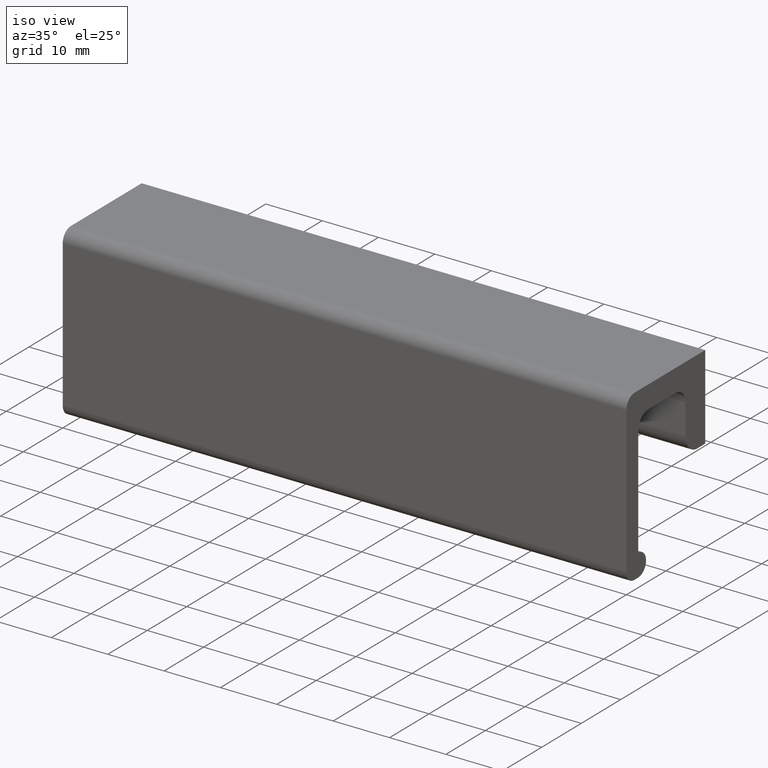
[diagram: clean part render]
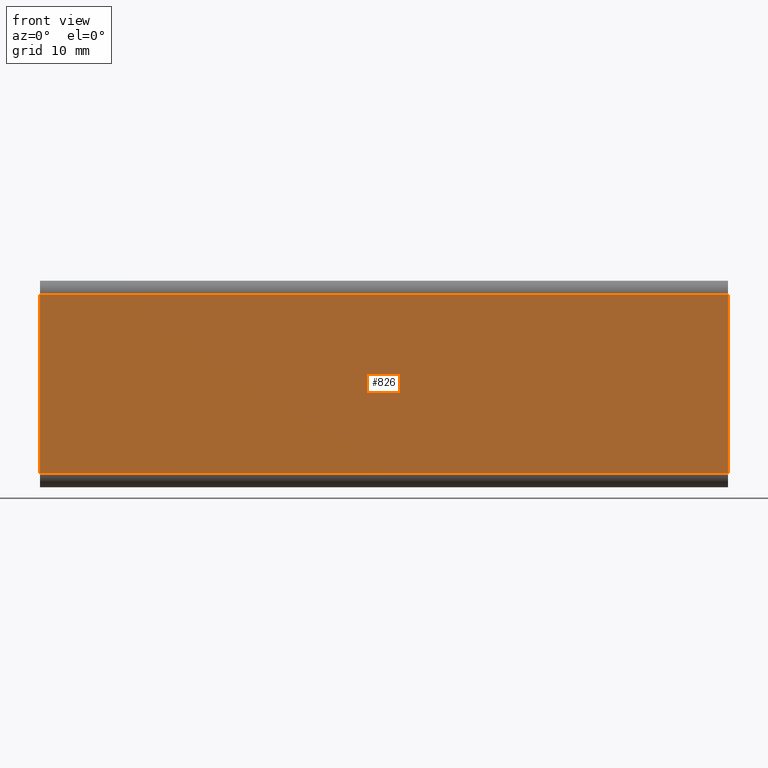
[diagram: tour spotlight — one face highlighted and labeled with its STEP entity id]
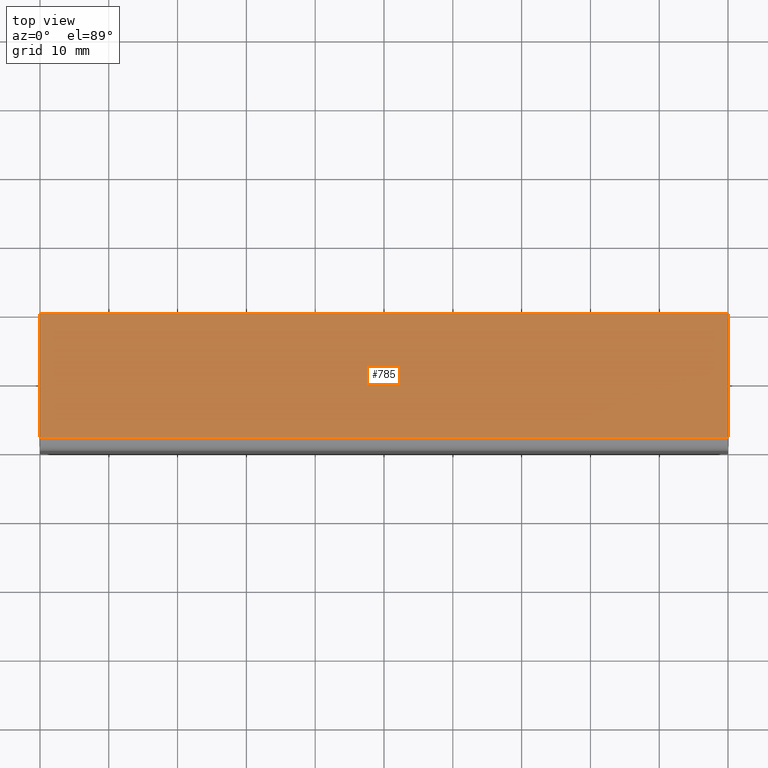
[diagram: tour spotlight — one face highlighted and labeled with its STEP entity id]
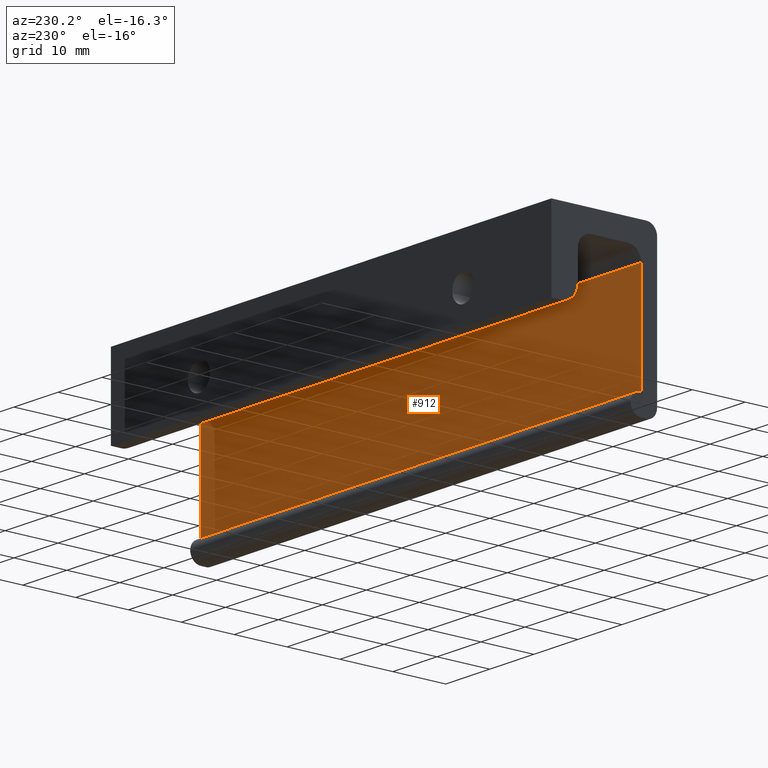
[diagram: tour spotlight — one face highlighted and labeled with its STEP entity id]
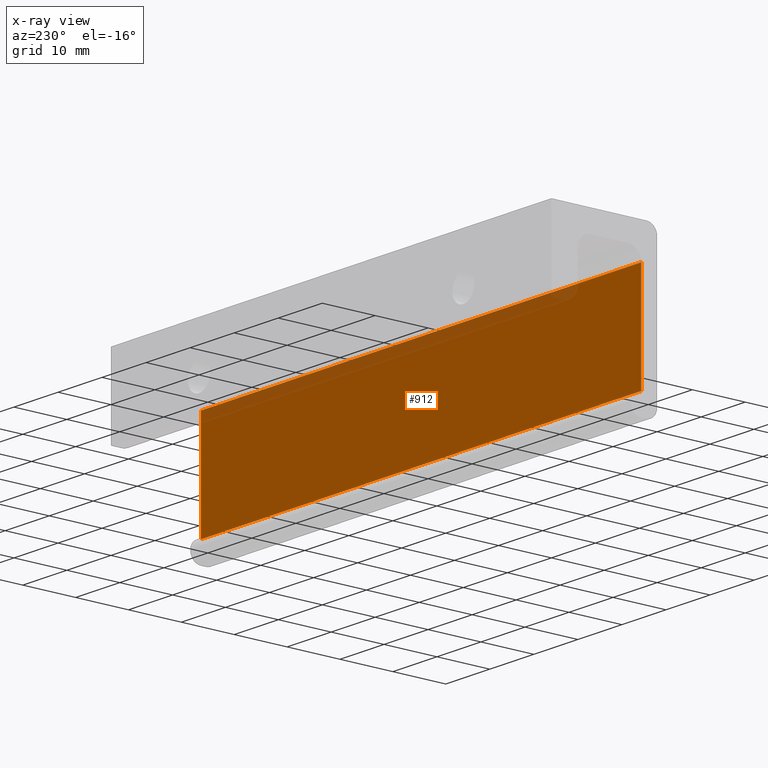
[diagram: x-ray of the same camera — body ghosted, this tour face saturated]
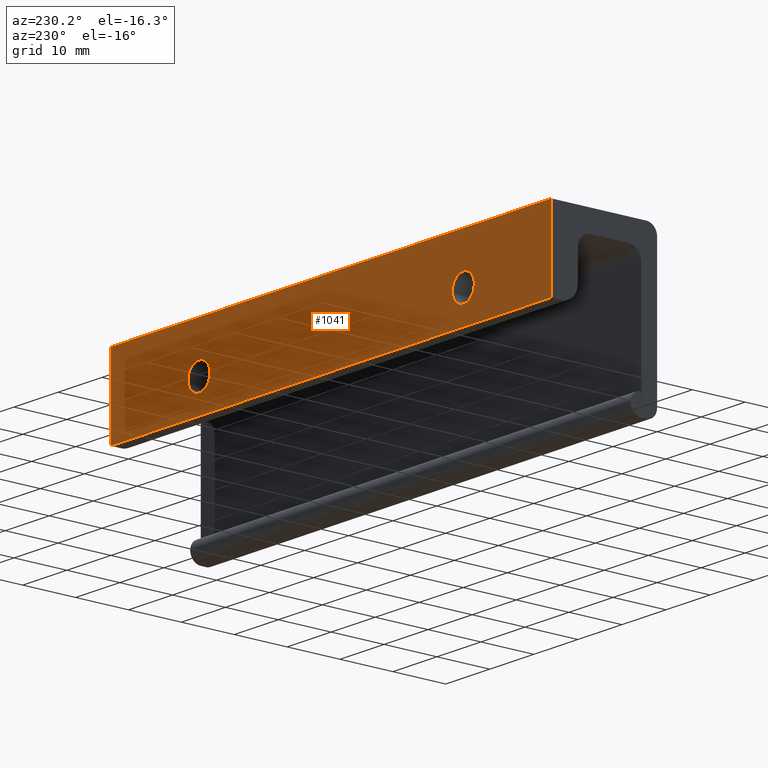
[diagram: tour spotlight — one face highlighted and labeled with its STEP entity id]
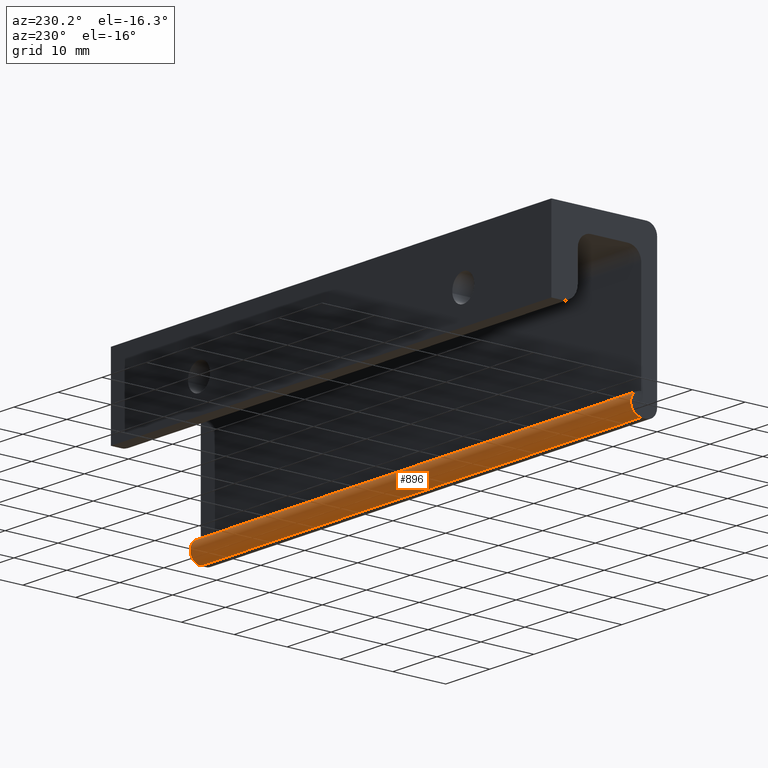
[diagram: tour spotlight — one face highlighted and labeled with its STEP entity id]
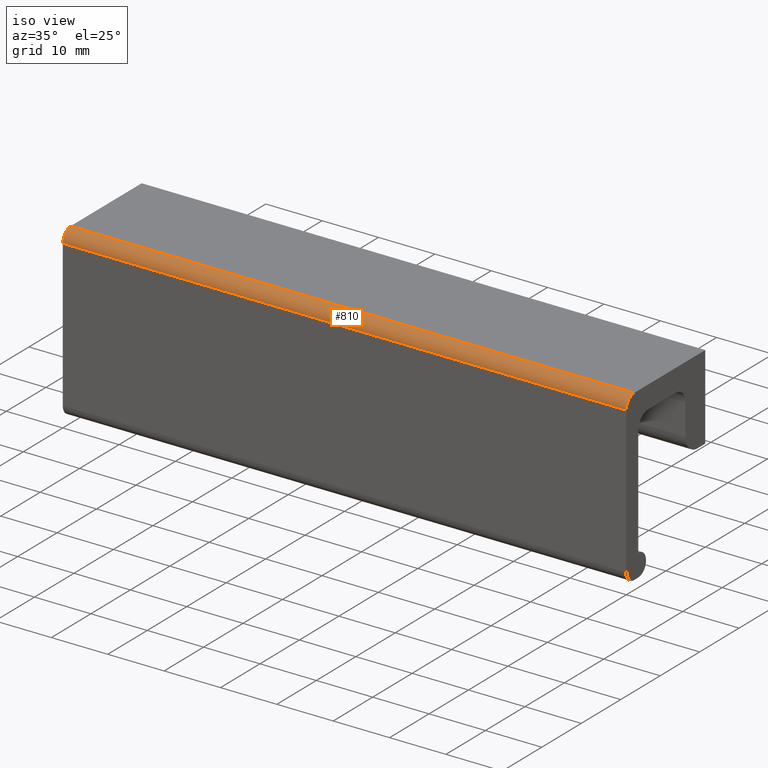
[diagram: tour spotlight — one face highlighted and labeled with its STEP entity id]
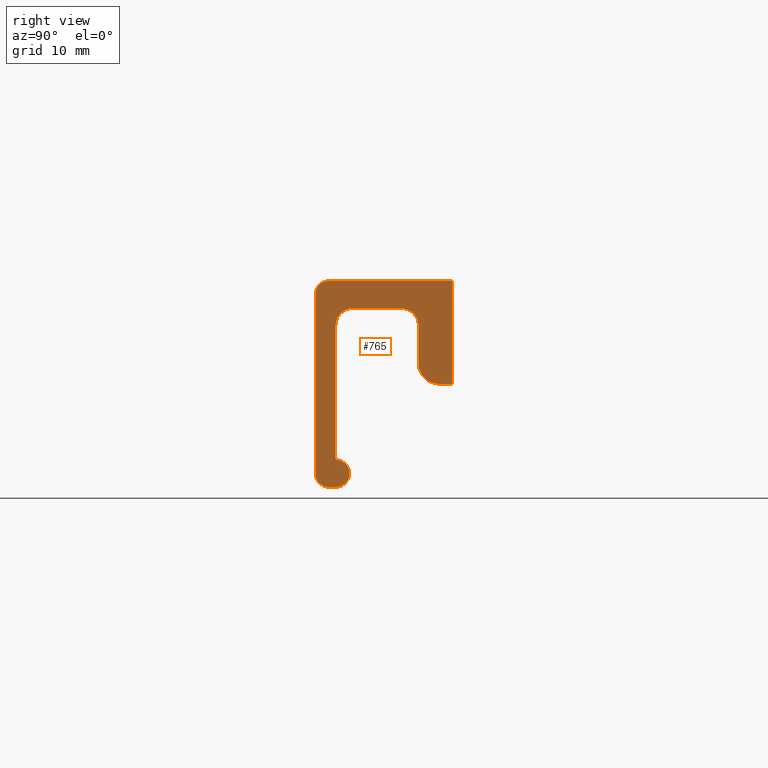
[diagram: tour spotlight — one face highlighted and labeled with its STEP entity id]
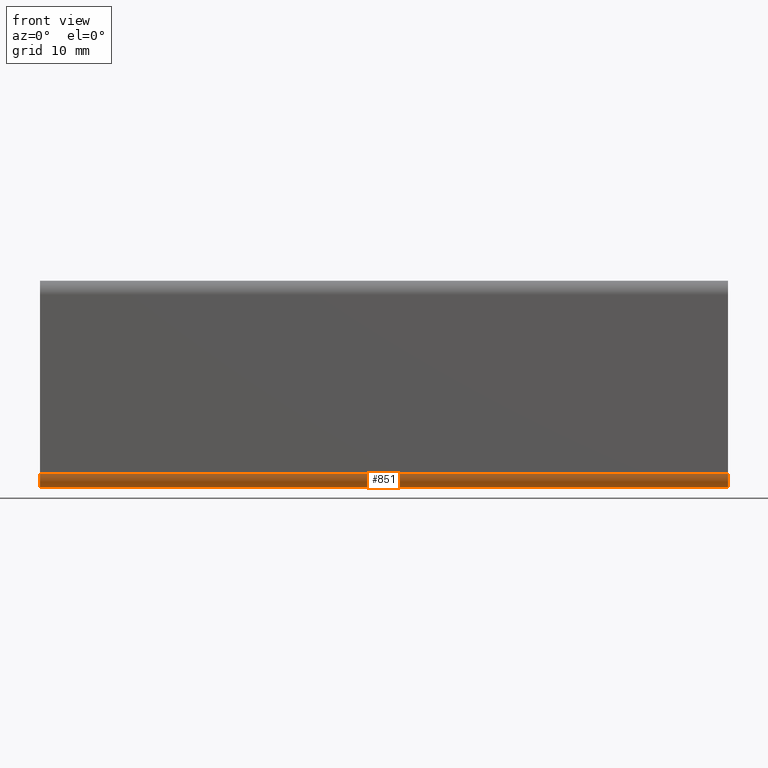
[diagram: tour spotlight — one face highlighted and labeled with its STEP entity id]
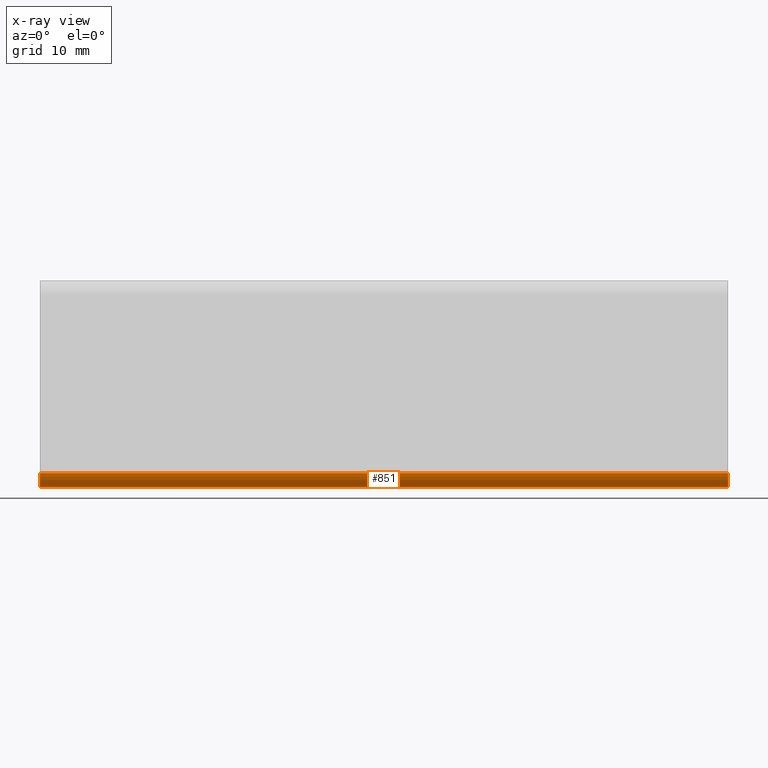
[diagram: x-ray of the same camera — body ghosted, this tour face saturated]
A machine part: a face-by-face anatomy tour. The part has 20 B-rep faces; the first image is the clean iso view, then the 8 largest visible faces are spotlighted one at a time (largest first), each with its STEP entity span.

Face 1 — front view, entity #826. In plain terms, the highlighted face is a freeform B-spline surface patch.
Definition (entity closure, byte-faithful):
#573=CARTESIAN_POINT('',(0.0,-20.0,-28.0));
#574=VERTEX_POINT('',#573);
#588=CARTESIAN_POINT('',(0.0,-20.0,-2.0));
#589=VERTEX_POINT('',#588);
#590=CARTESIAN_POINT('',(0.0,-20.0,-28.0));
#591=CARTESIAN_POINT('',(0.0,-20.0,-2.0));
#592=QUASI_UNIFORM_CURVE('',1,(#590,#591),.UNSPECIFIED.,.F.,.U.);
#593=EDGE_CURVE('',#574,#589,#592,.T.);
#639=CARTESIAN_POINT('',(100.0,-20.0,-2.0));
#640=VERTEX_POINT('',#639);
#654=CARTESIAN_POINT('',(100.0,-20.0,-28.0));
#655=VERTEX_POINT('',#654);
#656=CARTESIAN_POINT('',(100.0,-20.0,-28.0));
#657=CARTESIAN_POINT('',(100.0,-20.0,-2.0));
#658=QUASI_UNIFORM_CURVE('',1,(#656,#657),.UNSPECIFIED.,.F.,.U.);
#659=EDGE_CURVE('',#655,#640,#658,.T.);
#801=CARTESIAN_POINT('',(100.0,-20.0,-2.0));
#802=CARTESIAN_POINT('',(0.0,-20.0,-2.0));
#803=QUASI_UNIFORM_CURVE('',1,(#801,#802),.UNSPECIFIED.,.F.,.U.);
#804=EDGE_CURVE('',#640,#589,#803,.T.);
#811=CARTESIAN_POINT('',(-4.994999806180597,-20.0,-0.701300050393045));
#812=CARTESIAN_POINT('',(-4.994999806180597,-20.0,-29.298700646981299));
#813=CARTESIAN_POINT('',(104.995002488389600,-20.0,-0.701300050393045));
#814=CARTESIAN_POINT('',(104.995002488389600,-20.0,-29.298700646981299));
#815=B_SPLINE_SURFACE_WITH_KNOTS('',1,1,((#811,#813),(#812,#814)),.UNSPECIFIED.,.F.,.F.,.U.,(2,2),(2,2),(0.0,28.597400596588258),(0.0,109.990002294570200),.UNSPECIFIED.);
#816=ORIENTED_EDGE('',*,*,#593,.F.);
#817=CARTESIAN_POINT('',(100.0,-20.0,-28.0));
#818=CARTESIAN_POINT('',(0.0,-20.0,-28.0));
#819=QUASI_UNIFORM_CURVE('',1,(#817,#818),.UNSPECIFIED.,.F.,.U.);
#820=EDGE_CURVE('',#655,#574,#819,.T.);
#821=ORIENTED_EDGE('',*,*,#820,.F.);
#822=ORIENTED_EDGE('',*,*,#659,.T.);
#823=ORIENTED_EDGE('',*,*,#804,.T.);
#824=EDGE_LOOP('',(#816,#821,#822,#823));
#825=FACE_OUTER_BOUND('',#824,.T.);
#826=ADVANCED_FACE('',(#825),#815,.T.);

Face 2 — top view, entity #785. In plain terms, the highlighted face is a freeform B-spline surface patch.
Definition (entity closure, byte-faithful):
#475=CARTESIAN_POINT('',(0.0,0.0,0.0));
#476=VERTEX_POINT('',#475);
#595=CARTESIAN_POINT('',(0.0,-18.0,2.220446E-016));
#596=VERTEX_POINT('',#595);
#610=CARTESIAN_POINT('',(0.0,-18.0,2.220446E-016));
#611=CARTESIAN_POINT('',(0.0,0.0,0.0));
#612=QUASI_UNIFORM_CURVE('',1,(#610,#611),.UNSPECIFIED.,.F.,.U.);
#613=EDGE_CURVE('',#596,#476,#612,.T.);
#623=CARTESIAN_POINT('',(100.0,0.0,0.0));
#624=VERTEX_POINT('',#623);
#632=CARTESIAN_POINT('',(100.0,-18.0,2.220446E-016));
#633=VERTEX_POINT('',#632);
#634=CARTESIAN_POINT('',(100.0,-18.0,2.220446E-016));
#635=CARTESIAN_POINT('',(100.0,0.0,0.0));
#636=QUASI_UNIFORM_CURVE('',1,(#634,#635),.UNSPECIFIED.,.F.,.U.);
#637=EDGE_CURVE('',#633,#624,#636,.T.);
#766=CARTESIAN_POINT('',(-4.994999806180597,-18.899099965112509,0.0));
#767=CARTESIAN_POINT('',(104.995002488389600,-18.899099965112509,0.0));
#768=CARTESIAN_POINT('',(-4.994999806180597,0.899100447910131,0.0));
#769=CARTESIAN_POINT('',(104.995002488389600,0.899100447910131,0.0));
#770=B_SPLINE_SURFACE_WITH_KNOTS('',1,1,((#766,#768),(#767,#769)),.UNSPECIFIED.,.F.,.F.,.U.,(2,2),(2,2),(0.0,109.990002294570200),(0.0,19.798200413022641),.UNSPECIFIED.);
#771=ORIENTED_EDGE('',*,*,#613,.F.);
#772=CARTESIAN_POINT('',(100.0,-18.0,2.220446E-016));
#773=CARTESIAN_POINT('',(0.0,-18.0,2.220446E-016));
#774=QUASI_UNIFORM_CURVE('',1,(#772,#773),.UNSPECIFIED.,.F.,.U.);
#775=EDGE_CURVE('',#633,#596,#774,.T.);
#776=ORIENTED_EDGE('',*,*,#775,.F.);
#777=ORIENTED_EDGE('',*,*,#637,.T.);
#778=CARTESIAN_POINT('',(100.0,0.0,0.0));
#779=CARTESIAN_POINT('',(0.0,0.0,0.0));
#780=QUASI_UNIFORM_CURVE('',1,(#778,#779),.UNSPECIFIED.,.F.,.U.);
#781=EDGE_CURVE('',#624,#476,#780,.T.);
#782=ORIENTED_EDGE('',*,*,#781,.T.);
#783=EDGE_LOOP('',(#771,#776,#777,#782));
#784=FACE_OUTER_BOUND('',#783,.T.);
#785=ADVANCED_FACE('',(#784),#770,.T.);

Face 3 — auxiliary view, entity #912. An x-ray twin of the same camera follows (body ghosted, this face saturated) — the face is partly hidden behind the body. In plain terms, the highlighted face is a freeform B-spline surface patch.
Definition (entity closure, byte-faithful):
#527=CARTESIAN_POINT('',(0.0,-17.0,-6.500000000000000));
#528=VERTEX_POINT('',#527);
#542=CARTESIAN_POINT('',(0.0,-17.000000000000249,-26.0));
#543=VERTEX_POINT('',#542);
#544=CARTESIAN_POINT('',(0.0,-17.0,-6.500000000000000));
#545=CARTESIAN_POINT('',(0.0,-17.000000000000249,-26.0));
#546=QUASI_UNIFORM_CURVE('',1,(#544,#545),.UNSPECIFIED.,.F.,.U.);
#547=EDGE_CURVE('',#528,#543,#546,.T.);
#683=CARTESIAN_POINT('',(100.0,-17.000000000000249,-26.0));
#684=VERTEX_POINT('',#683);
#700=CARTESIAN_POINT('',(100.0,-17.0,-6.500000000000000));
#701=VERTEX_POINT('',#700);
#702=CARTESIAN_POINT('',(100.0,-17.0,-6.500000000000000));
#703=CARTESIAN_POINT('',(100.0,-17.000000000000249,-26.0));
#704=QUASI_UNIFORM_CURVE('',1,(#702,#703),.UNSPECIFIED.,.F.,.U.);
#705=EDGE_CURVE('',#701,#684,#704,.T.);
#887=CARTESIAN_POINT('',(100.0,-17.000000000000249,-26.0));
#888=CARTESIAN_POINT('',(0.0,-17.000000000000249,-26.0));
#889=QUASI_UNIFORM_CURVE('',1,(#887,#888),.UNSPECIFIED.,.F.,.U.);
#890=EDGE_CURVE('',#684,#543,#889,.T.);
#897=CARTESIAN_POINT('',(-4.994999806180597,-17.000000000000249,-26.974024962205220));
#898=CARTESIAN_POINT('',(-4.994999806180597,-17.000000000000249,-5.525974514764027));
#899=CARTESIAN_POINT('',(104.995002488389600,-17.000000000000249,-26.974024962205220));
#900=CARTESIAN_POINT('',(104.995002488389600,-17.000000000000249,-5.525974514764027));
#901=B_SPLINE_SURFACE_WITH_KNOTS('',1,1,((#897,#899),(#898,#900)),.UNSPECIFIED.,.F.,.F.,.U.,(2,2),(2,2),(0.0,21.448050447441190),(0.0,109.990002294570200),.UNSPECIFIED.);
#902=ORIENTED_EDGE('',*,*,#547,.F.);
#903=CARTESIAN_POINT('',(100.0,-17.0,-6.500000000000000));
#904=CARTESIAN_POINT('',(0.0,-17.0,-6.500000000000000));
#905=QUASI_UNIFORM_CURVE('',1,(#903,#904),.UNSPECIFIED.,.F.,.U.);
#906=EDGE_CURVE('',#701,#528,#905,.T.);
#907=ORIENTED_EDGE('',*,*,#906,.F.);
#908=ORIENTED_EDGE('',*,*,#705,.T.);
#909=ORIENTED_EDGE('',*,*,#890,.T.);
#910=EDGE_LOOP('',(#902,#907,#908,#909));
#911=FACE_OUTER_BOUND('',#910,.T.);
#912=ADVANCED_FACE('',(#911),#901,.T.);

Face 4 — auxiliary view, entity #1041. In plain terms, the highlighted face is a freeform B-spline surface patch.
Definition (entity closure, byte-faithful):
#79=CARTESIAN_POINT('',(82.480665534556664,5.801229E-017,-9.310320005256934));
#80=VERTEX_POINT('',#79);
#86=CARTESIAN_POINT('',(80.0,0.0,-11.500000000000000));
#87=VERTEX_POINT('',#86);
#88=CARTESIAN_POINT('',(80.0,0.0,-11.500000000000000));
#89=CARTESIAN_POINT('',(82.206746500272715,0.0,-11.499999999999996));
#90=CARTESIAN_POINT('',(82.480665534556678,5.801229E-017,-9.310320005256934));
#98=(BOUNDED_CURVE()B_SPLINE_CURVE(2,(#88,#89,#90),.UNSPECIFIED.,.F.,.U.)B_SPLINE_CURVE_WITH_KNOTS((3,3),(0.500000000000000,0.728526071021500),.UNSPECIFIED.)CURVE()GEOMETRIC_REPRESENTATION_ITEM()RATIONAL_B_SPLINE_CURVE((1.0,0.732265053902885,0.954005430259584))REPRESENTATION_ITEM(''));
#99=EDGE_CURVE('',#87,#80,#98,.T.);
#101=CARTESIAN_POINT('',(77.500095192344503,8.326673E-017,-8.978183660689510));
#102=VERTEX_POINT('',#101);
#103=CARTESIAN_POINT('',(77.500095192344503,8.326673E-017,-8.978183660689510));
#104=CARTESIAN_POINT('',(77.500000000000000,0.0,-8.989091622383658));
#105=CARTESIAN_POINT('',(77.500000000000000,0.0,-9.0));
#106=CARTESIAN_POINT('',(77.500000000000014,0.0,-11.500000000000000));
#107=CARTESIAN_POINT('',(80.0,0.0,-11.500000000000000));
#115=(BOUNDED_CURVE()B_SPLINE_CURVE(2,(#103,#104,#105,#106,#107),.UNSPECIFIED.,.F.,.U.)B_SPLINE_CURVE_WITH_KNOTS((3,2,3),(0.248460105585456,0.250000000000000,0.500000000000000),.UNSPECIFIED.)CURVE()GEOMETRIC_REPRESENTATION_ITEM()RATIONAL_B_SPLINE_CURVE((0.996414027916289,0.998195901473165,1.0,0.707106781186548,1.0))REPRESENTATION_ITEM(''));
#116=EDGE_CURVE('',#102,#87,#115,.T.);
#196=CARTESIAN_POINT('',(80.0,0.0,-6.499999999999999));
#197=VERTEX_POINT('',#196);
#198=CARTESIAN_POINT('',(80.0,0.0,-6.499999999999999));
#199=CARTESIAN_POINT('',(77.521721974631930,0.0,-6.499999999999998));
#200=CARTESIAN_POINT('',(77.500095192344503,8.326673E-017,-8.978183660689510));
#208=(BOUNDED_CURVE()B_SPLINE_CURVE(2,(#198,#199,#200),.UNSPECIFIED.,.F.,.U.)B_SPLINE_CURVE_WITH_KNOTS((3,3),(0.0,0.248460105585456),.UNSPECIFIED.)CURVE()GEOMETRIC_REPRESENTATION_ITEM()RATIONAL_B_SPLINE_CURVE((1.0,0.708910879713382,0.996414027916289))REPRESENTATION_ITEM(''));
#209=EDGE_CURVE('',#197,#102,#208,.T.);
#211=CARTESIAN_POINT('',(82.480665534556678,5.801229E-017,-9.310320005256934));
#212=CARTESIAN_POINT('',(82.499999999999986,0.0,-9.155762318891766));
#213=CARTESIAN_POINT('',(82.500000000000000,0.0,-9.0));
#214=CARTESIAN_POINT('',(82.500000000000000,0.0,-6.499999999999999));
#215=CARTESIAN_POINT('',(80.0,0.0,-6.499999999999999));
#223=(BOUNDED_CURVE()B_SPLINE_CURVE(2,(#211,#212,#213,#214,#215),.UNSPECIFIED.,.F.,.U.)B_SPLINE_CURVE_WITH_KNOTS((3,2,3),(0.728526071021500,0.750000000000000,1.0),.UNSPECIFIED.)CURVE()GEOMETRIC_REPRESENTATION_ITEM()RATIONAL_B_SPLINE_CURVE((0.954005430259584,0.974841727283662,1.0,0.707106781186548,1.0))REPRESENTATION_ITEM(''));
#224=EDGE_CURVE('',#80,#197,#223,.T.);
#265=CARTESIAN_POINT('',(22.480665534556671,5.801229E-017,-9.310320005256934));
#266=VERTEX_POINT('',#265);
#272=CARTESIAN_POINT('',(20.0,0.0,-11.500000000000000));
#273=VERTEX_POINT('',#272);
#274=CARTESIAN_POINT('',(20.0,0.0,-11.500000000000000));
#275=CARTESIAN_POINT('',(22.206746500272718,0.0,-11.499999999999996));
#276=CARTESIAN_POINT('',(22.480665534556675,5.801229E-017,-9.310320005256934));
#284=(BOUNDED_CURVE()B_SPLINE_CURVE(2,(#274,#275,#276),.UNSPECIFIED.,.F.,.U.)B_SPLINE_CURVE_WITH_KNOTS((3,3),(0.500000000000000,0.728526071021500),.UNSPECIFIED.)CURVE()GEOMETRIC_REPRESENTATION_ITEM()RATIONAL_B_SPLINE_CURVE((1.0,0.732265053902885,0.954005430259584))REPRESENTATION_ITEM(''));
#285=EDGE_CURVE('',#273,#266,#284,.T.);
#287=CARTESIAN_POINT('',(17.500095192344499,8.326673E-017,-8.978183660689510));
#288=VERTEX_POINT('',#287);
#289=CARTESIAN_POINT('',(17.500095192344499,8.326673E-017,-8.978183660689510));
#290=CARTESIAN_POINT('',(17.499999999999996,0.0,-8.989091622383656));
#291=CARTESIAN_POINT('',(17.500000000000000,0.0,-9.0));
#292=CARTESIAN_POINT('',(17.499999999999996,0.0,-11.500000000000000));
#293=CARTESIAN_POINT('',(20.0,0.0,-11.500000000000000));
#301=(BOUNDED_CURVE()B_SPLINE_CURVE(2,(#289,#290,#291,#292,#293),.UNSPECIFIED.,.F.,.U.)B_SPLINE_CURVE_WITH_KNOTS((3,2,3),(0.248460105585456,0.250000000000000,0.500000000000000),.UNSPECIFIED.)CURVE()GEOMETRIC_REPRESENTATION_ITEM()RATIONAL_B_SPLINE_CURVE((0.996414027916289,0.998195901473165,1.0,0.707106781186548,1.0))REPRESENTATION_ITEM(''));
#302=EDGE_CURVE('',#288,#273,#301,.T.);
#382=CARTESIAN_POINT('',(20.0,0.0,-6.499999999999999));
#383=VERTEX_POINT('',#382);
#384=CARTESIAN_POINT('',(20.0,0.0,-6.499999999999999));
#385=CARTESIAN_POINT('',(17.521721974631951,0.0,-6.499999999999998));
#386=CARTESIAN_POINT('',(17.500095192344503,8.326673E-017,-8.978183660689510));
#394=(BOUNDED_CURVE()B_SPLINE_CURVE(2,(#384,#385,#386),.UNSPECIFIED.,.F.,.U.)B_SPLINE_CURVE_WITH_KNOTS((3,3),(0.0,0.248460105585456),.UNSPECIFIED.)CURVE()GEOMETRIC_REPRESENTATION_ITEM()RATIONAL_B_SPLINE_CURVE((1.0,0.708910879713382,0.996414027916288))REPRESENTATION_ITEM(''));
#395=EDGE_CURVE('',#383,#288,#394,.T.);
#397=CARTESIAN_POINT('',(22.480665534556675,5.801229E-017,-9.310320005256934));
#398=CARTESIAN_POINT('',(22.499999999999993,0.0,-9.155762318891766));
#399=CARTESIAN_POINT('',(22.500000000000000,0.0,-9.0));
#400=CARTESIAN_POINT('',(22.500000000000000,0.0,-6.499999999999999));
#401=CARTESIAN_POINT('',(20.0,0.0,-6.499999999999999));
#409=(BOUNDED_CURVE()B_SPLINE_CURVE(2,(#397,#398,#399,#400,#401),.UNSPECIFIED.,.F.,.U.)B_SPLINE_CURVE_WITH_KNOTS((3,2,3),(0.728526071021500,0.750000000000000,1.0),.UNSPECIFIED.)CURVE()GEOMETRIC_REPRESENTATION_ITEM()RATIONAL_B_SPLINE_CURVE((0.954005430259584,0.974841727283662,1.0,0.707106781186548,1.0))REPRESENTATION_ITEM(''));
#410=EDGE_CURVE('',#266,#383,#409,.T.);
#475=CARTESIAN_POINT('',(0.0,0.0,0.0));
#476=VERTEX_POINT('',#475);
#477=CARTESIAN_POINT('',(0.0,0.0,-15.0));
#478=VERTEX_POINT('',#477);
#479=CARTESIAN_POINT('',(0.0,0.0,0.0));
#480=CARTESIAN_POINT('',(0.0,0.0,-15.0));
#481=QUASI_UNIFORM_CURVE('',1,(#479,#480),.UNSPECIFIED.,.F.,.U.);
#482=EDGE_CURVE('',#476,#478,#481,.T.);
#623=CARTESIAN_POINT('',(100.0,0.0,0.0));
#624=VERTEX_POINT('',#623);
#625=CARTESIAN_POINT('',(100.0,0.0,-15.0));
#626=VERTEX_POINT('',#625);
#627=CARTESIAN_POINT('',(100.0,0.0,0.0));
#628=CARTESIAN_POINT('',(100.0,0.0,-15.0));
#629=QUASI_UNIFORM_CURVE('',1,(#627,#628),.UNSPECIFIED.,.F.,.U.);
#630=EDGE_CURVE('',#624,#626,#629,.T.);
#778=CARTESIAN_POINT('',(100.0,0.0,0.0));
#779=CARTESIAN_POINT('',(0.0,0.0,0.0));
#780=QUASI_UNIFORM_CURVE('',1,(#778,#779),.UNSPECIFIED.,.F.,.U.);
#781=EDGE_CURVE('',#624,#476,#780,.T.);
#1008=CARTESIAN_POINT('',(100.0,0.0,-15.0));
#1009=CARTESIAN_POINT('',(0.0,0.0,-15.0));
#1010=QUASI_UNIFORM_CURVE('',1,(#1008,#1009),.UNSPECIFIED.,.F.,.U.);
#1011=EDGE_CURVE('',#626,#478,#1010,.T.);
#1018=CARTESIAN_POINT('',(-4.994999806180597,0.0,-15.749249970927091));
#1019=CARTESIAN_POINT('',(-4.994999806180597,0.0,0.749250373258442));
#1020=CARTESIAN_POINT('',(104.995002488389600,0.0,-15.749249970927091));
#1021=CARTESIAN_POINT('',(104.995002488389600,0.0,0.749250373258442));
#1022=B_SPLINE_SURFACE_WITH_KNOTS('',1,1,((#1018,#1020),(#1019,#1021)),.UNSPECIFIED.,.F.,.F.,.U.,(2,2),(2,2),(0.0,16.498500344185530),(0.0,109.990002294570200),.UNSPECIFIED.);
#1023=ORIENTED_EDGE('',*,*,#482,.F.);
#1024=ORIENTED_EDGE('',*,*,#781,.F.);
#1025=ORIENTED_EDGE('',*,*,#630,.T.);
#1026=ORIENTED_EDGE('',*,*,#1011,.T.);
#1027=EDGE_LOOP('',(#1023,#1024,#1025,#1026));
#1028=FACE_OUTER_BOUND('',#1027,.T.);
#1029=ORIENTED_EDGE('',*,*,#395,.T.);
#1030=ORIENTED_EDGE('',*,*,#302,.T.);
#1031=ORIENTED_EDGE('',*,*,#285,.T.);
#1032=ORIENTED_EDGE('',*,*,#410,.T.);
#1033=EDGE_LOOP('',(#1029,#1030,#1031,#1032));
#1034=FACE_BOUND('',#1033,.T.);
#1035=ORIENTED_EDGE('',*,*,#209,.T.);
#1036=ORIENTED_EDGE('',*,*,#116,.T.);
#1037=ORIENTED_EDGE('',*,*,#99,.T.);
#1038=ORIENTED_EDGE('',*,*,#224,.T.);
#1039=EDGE_LOOP('',(#1035,#1036,#1037,#1038));
#1040=FACE_BOUND('',#1039,.T.);
#1041=ADVANCED_FACE('',(#1028,#1034,#1040),#1022,.T.);

Face 5 — auxiliary view, entity #896. In plain terms, the highlighted face is a freeform B-spline surface patch.
Definition (entity closure, byte-faithful):
#542=CARTESIAN_POINT('',(0.0,-17.000000000000249,-26.0));
#543=VERTEX_POINT('',#542);
#549=CARTESIAN_POINT('',(0.0,-17.000000000000249,-30.0));
#550=VERTEX_POINT('',#549);
#551=CARTESIAN_POINT('',(0.0,-17.000000000000249,-30.0));
#552=CARTESIAN_POINT('',(0.0,-15.000000000000249,-30.000000000000004));
#553=CARTESIAN_POINT('',(0.0,-15.000000000000250,-28.0));
#554=CARTESIAN_POINT('',(0.0,-15.000000000000249,-26.000000000000004));
#555=CARTESIAN_POINT('',(0.0,-17.000000000000249,-26.0));
#563=(BOUNDED_CURVE()B_SPLINE_CURVE(2,(#551,#552,#553,#554,#555),.UNSPECIFIED.,.F.,.U.)B_SPLINE_CURVE_WITH_KNOTS((3,2,3),(0.0,0.500000000000000,1.0),.UNSPECIFIED.)CURVE()GEOMETRIC_REPRESENTATION_ITEM()RATIONAL_B_SPLINE_CURVE((1.0,0.707106781186548,1.0,0.707106781186548,1.0))REPRESENTATION_ITEM(''));
#564=EDGE_CURVE('',#550,#543,#563,.T.);
#676=CARTESIAN_POINT('',(100.0,-17.000000000000249,-30.0));
#677=VERTEX_POINT('',#676);
#683=CARTESIAN_POINT('',(100.0,-17.000000000000249,-26.0));
#684=VERTEX_POINT('',#683);
#685=CARTESIAN_POINT('',(100.0,-17.000000000000249,-30.0));
#686=CARTESIAN_POINT('',(100.0,-15.000000000000249,-30.000000000000004));
#687=CARTESIAN_POINT('',(100.0,-15.000000000000250,-28.0));
#688=CARTESIAN_POINT('',(100.0,-15.000000000000249,-26.000000000000004));
#689=CARTESIAN_POINT('',(100.0,-17.000000000000249,-26.0));
#697=(BOUNDED_CURVE()B_SPLINE_CURVE(2,(#685,#686,#687,#688,#689),.UNSPECIFIED.,.F.,.U.)B_SPLINE_CURVE_WITH_KNOTS((3,2,3),(0.0,0.500000000000000,1.0),.UNSPECIFIED.)CURVE()GEOMETRIC_REPRESENTATION_ITEM()RATIONAL_B_SPLINE_CURVE((1.0,0.707106781186548,1.0,0.707106781186548,1.0))REPRESENTATION_ITEM(''));
#698=EDGE_CURVE('',#677,#684,#697,.T.);
#858=CARTESIAN_POINT('',(100.0,-17.000000000000249,-30.0));
#859=CARTESIAN_POINT('',(0.0,-17.000000000000249,-30.0));
#860=QUASI_UNIFORM_CURVE('',1,(#858,#859),.UNSPECIFIED.,.F.,.U.);
#861=EDGE_CURVE('',#677,#550,#860,.T.);
#868=CARTESIAN_POINT('',(102.500000000000000,-17.052353896616001,-29.999314649951110));
#869=CARTESIAN_POINT('',(-2.562500000000000,-17.052353896616001,-29.999314649951110));
#870=CARTESIAN_POINT('',(102.500000000000010,-14.945515854314456,-30.054484145685791));
#871=CARTESIAN_POINT('',(-2.562500000000000,-14.945515854314456,-30.054484145685791));
#872=CARTESIAN_POINT('',(102.500000000000000,-15.000685350049141,-27.947646103384251));
#873=CARTESIAN_POINT('',(-2.562500000000000,-15.000685350049141,-27.947646103384251));
#874=CARTESIAN_POINT('',(102.500000000000010,-15.055854845783832,-25.840808061082697));
#875=CARTESIAN_POINT('',(-2.562500000000000,-15.055854845783832,-25.840808061082697));
#876=CARTESIAN_POINT('',(102.500000000000000,-17.156918191455940,-26.006165332533751));
#877=CARTESIAN_POINT('',(-2.562500000000000,-17.156918191455940,-26.006165332533751));
#885=(BOUNDED_SURFACE()B_SPLINE_SURFACE(1,2,((#868,#870,#872,#874,#876),(#869,#871,#873,#875,#877)),.UNSPECIFIED.,.F.,.F.,.U.)B_SPLINE_SURFACE_WITH_KNOTS((2,2),(3,2,3),(0.0,105.062500000000000),(0.0,3.437071247734684,6.874142495469369),.UNSPECIFIED.)GEOMETRIC_REPRESENTATION_ITEM()RATIONAL_B_SPLINE_SURFACE(((1.0,0.688354575693754,1.0,0.688354575693754,1.0),(1.0,0.688354575693754,1.0,0.688354575693754,1.0)))REPRESENTATION_ITEM('')SURFACE());
#886=ORIENTED_EDGE('',*,*,#564,.T.);
#887=CARTESIAN_POINT('',(100.0,-17.000000000000249,-26.0));
#888=CARTESIAN_POINT('',(0.0,-17.000000000000249,-26.0));
#889=QUASI_UNIFORM_CURVE('',1,(#887,#888),.UNSPECIFIED.,.F.,.U.);
#890=EDGE_CURVE('',#684,#543,#889,.T.);
#891=ORIENTED_EDGE('',*,*,#890,.F.);
#892=ORIENTED_EDGE('',*,*,#698,.F.);
#893=ORIENTED_EDGE('',*,*,#861,.T.);
#894=EDGE_LOOP('',(#886,#891,#892,#893));
#895=FACE_OUTER_BOUND('',#894,.T.);
#896=ADVANCED_FACE('',(#895),#885,.T.);

Face 6 — iso view, entity #810. In plain terms, the highlighted face is a freeform B-spline surface patch.
Definition (entity closure, byte-faithful):
#588=CARTESIAN_POINT('',(0.0,-20.0,-2.0));
#589=VERTEX_POINT('',#588);
#595=CARTESIAN_POINT('',(0.0,-18.0,2.220446E-016));
#596=VERTEX_POINT('',#595);
#597=CARTESIAN_POINT('',(0.0,-18.0,0.0));
#598=CARTESIAN_POINT('',(0.0,-19.999999999999996,0.0));
#599=CARTESIAN_POINT('',(0.0,-20.0,-2.0));
#607=(BOUNDED_CURVE()B_SPLINE_CURVE(2,(#597,#598,#599),.UNSPECIFIED.,.F.,.U.)CURVE()GEOMETRIC_REPRESENTATION_ITEM()QUASI_UNIFORM_CURVE()RATIONAL_B_SPLINE_CURVE((1.0,0.707106781186548,1.0))REPRESENTATION_ITEM(''));
#608=EDGE_CURVE('',#596,#589,#607,.T.);
#632=CARTESIAN_POINT('',(100.0,-18.0,2.220446E-016));
#633=VERTEX_POINT('',#632);
#639=CARTESIAN_POINT('',(100.0,-20.0,-2.0));
#640=VERTEX_POINT('',#639);
#641=CARTESIAN_POINT('',(100.0,-18.0,0.0));
#642=CARTESIAN_POINT('',(100.0,-19.999999999999996,0.0));
#643=CARTESIAN_POINT('',(100.0,-20.0,-2.0));
#651=(BOUNDED_CURVE()B_SPLINE_CURVE(2,(#641,#642,#643),.UNSPECIFIED.,.F.,.U.)CURVE()GEOMETRIC_REPRESENTATION_ITEM()QUASI_UNIFORM_CURVE()RATIONAL_B_SPLINE_CURVE((1.0,0.707106781186548,1.0))REPRESENTATION_ITEM(''));
#652=EDGE_CURVE('',#633,#640,#651,.T.);
#772=CARTESIAN_POINT('',(100.0,-18.0,2.220446E-016));
#773=CARTESIAN_POINT('',(0.0,-18.0,2.220446E-016));
#774=QUASI_UNIFORM_CURVE('',1,(#772,#773),.UNSPECIFIED.,.F.,.U.);
#775=EDGE_CURVE('',#633,#596,#774,.T.);
#786=CARTESIAN_POINT('',(102.500000000000000,-17.912761225269328,-0.001903556836285));
#787=CARTESIAN_POINT('',(-2.562500000000000,-17.912761225269328,-0.001903556836285));
#788=CARTESIAN_POINT('',(102.500000000000010,-20.152120528918076,0.095868981871968));
#789=CARTESIAN_POINT('',(-2.562500000000001,-20.152120528918076,0.095868981871968));
#790=CARTESIAN_POINT('',(102.500000000000030,-19.995085826463828,-2.140116184087046));
#791=CARTESIAN_POINT('',(-2.562500000000000,-19.995085826463828,-2.140116184087046));
#799=(BOUNDED_SURFACE()B_SPLINE_SURFACE(1,2,((#786,#788,#790),(#787,#789,#791)),.UNSPECIFIED.,.F.,.F.,.U.)B_SPLINE_SURFACE_WITH_KNOTS((2,2),(3,3),(0.0,105.062500000000000),(0.0,3.583485079683966),.UNSPECIFIED.)GEOMETRIC_REPRESENTATION_ITEM()RATIONAL_B_SPLINE_SURFACE(((1.0,0.664513898535122,0.996233561259061),(1.0,0.664513898535122,0.996233561259061)))REPRESENTATION_ITEM('')SURFACE());
#800=ORIENTED_EDGE('',*,*,#608,.T.);
#801=CARTESIAN_POINT('',(100.0,-20.0,-2.0));
#802=CARTESIAN_POINT('',(0.0,-20.0,-2.0));
#803=QUASI_UNIFORM_CURVE('',1,(#801,#802),.UNSPECIFIED.,.F.,.U.);
#804=EDGE_CURVE('',#640,#589,#803,.T.);
#805=ORIENTED_EDGE('',*,*,#804,.F.);
#806=ORIENTED_EDGE('',*,*,#652,.F.);
#807=ORIENTED_EDGE('',*,*,#775,.T.);
#808=EDGE_LOOP('',(#800,#805,#806,#807));
#809=FACE_OUTER_BOUND('',#808,.T.);
#810=ADVANCED_FACE('',(#809),#799,.T.);

Face 7 — right view, entity #765. In plain terms, the highlighted face is a freeform B-spline surface patch.
Definition (entity closure, byte-faithful):
#421=CARTESIAN_POINT('',(100.0,-5.000000000000110,-6.500000000000000));
#422=VERTEX_POINT('',#421);
#455=CARTESIAN_POINT('',(100.0,-5.0,-12.0));
#456=VERTEX_POINT('',#455);
#462=CARTESIAN_POINT('',(100.0,-5.0,-12.0));
#463=CARTESIAN_POINT('',(100.0,-5.000000000000110,-6.500000000000000));
#464=QUASI_UNIFORM_CURVE('',1,(#462,#463),.UNSPECIFIED.,.F.,.U.);
#465=EDGE_CURVE('',#456,#422,#464,.T.);
#618=CARTESIAN_POINT('',(100.0,-20.998999961236120,1.498499941854179));
#619=CARTESIAN_POINT('',(100.0,0.999000497677920,1.498499941854179));
#620=CARTESIAN_POINT('',(100.0,-20.998999961236120,-31.498500746516889));
#621=CARTESIAN_POINT('',(100.0,0.999000497677920,-31.498500746516889));
#622=B_SPLINE_SURFACE_WITH_KNOTS('',1,1,((#618,#620),(#619,#621)),.UNSPECIFIED.,.F.,.F.,.U.,(2,2),(2,2),(0.0,21.998000458914039),(0.0,32.997000688371067),.UNSPECIFIED.);
#623=CARTESIAN_POINT('',(100.0,0.0,0.0));
#624=VERTEX_POINT('',#623);
#625=CARTESIAN_POINT('',(100.0,0.0,-15.0));
#626=VERTEX_POINT('',#625);
#627=CARTESIAN_POINT('',(100.0,0.0,0.0));
#628=CARTESIAN_POINT('',(100.0,0.0,-15.0));
#629=QUASI_UNIFORM_CURVE('',1,(#627,#628),.UNSPECIFIED.,.F.,.U.);
#630=EDGE_CURVE('',#624,#626,#629,.T.);
#631=ORIENTED_EDGE('',*,*,#630,.F.);
#632=CARTESIAN_POINT('',(100.0,-18.0,2.220446E-016));
#633=VERTEX_POINT('',#632);
#634=CARTESIAN_POINT('',(100.0,-18.0,2.220446E-016));
#635=CARTESIAN_POINT('',(100.0,0.0,0.0));
#636=QUASI_UNIFORM_CURVE('',1,(#634,#635),.UNSPECIFIED.,.F.,.U.);
#637=EDGE_CURVE('',#633,#624,#636,.T.);
#638=ORIENTED_EDGE('',*,*,#637,.F.);
#639=CARTESIAN_POINT('',(100.0,-20.0,-2.0));
#640=VERTEX_POINT('',#639);
#641=CARTESIAN_POINT('',(100.0,-18.0,0.0));
#642=CARTESIAN_POINT('',(100.0,-19.999999999999996,0.0));
#643=CARTESIAN_POINT('',(100.0,-20.0,-2.0));
#651=(BOUNDED_CURVE()B_SPLINE_CURVE(2,(#641,#642,#643),.UNSPECIFIED.,.F.,.U.)CURVE()GEOMETRIC_REPRESENTATION_ITEM()QUASI_UNIFORM_CURVE()RATIONAL_B_SPLINE_CURVE((1.0,0.707106781186548,1.0))REPRESENTATION_ITEM(''));
#652=EDGE_CURVE('',#633,#640,#651,.T.);
#653=ORIENTED_EDGE('',*,*,#652,.T.);
#654=CARTESIAN_POINT('',(100.0,-20.0,-28.0));
#655=VERTEX_POINT('',#654);
#656=CARTESIAN_POINT('',(100.0,-20.0,-28.0));
#657=CARTESIAN_POINT('',(100.0,-20.0,-2.0));
#658=QUASI_UNIFORM_CURVE('',1,(#656,#657),.UNSPECIFIED.,.F.,.U.);
#659=EDGE_CURVE('',#655,#640,#658,.T.);
#660=ORIENTED_EDGE('',*,*,#659,.F.);
#661=CARTESIAN_POINT('',(100.0,-18.0,-30.0));
#662=VERTEX_POINT('',#661);
#663=CARTESIAN_POINT('',(100.0,-20.0,-28.0));
#664=CARTESIAN_POINT('',(100.0,-19.999999999999996,-30.000000000000004));
#665=CARTESIAN_POINT('',(100.0,-18.0,-30.0));
#673=(BOUNDED_CURVE()B_SPLINE_CURVE(2,(#663,#664,#665),.UNSPECIFIED.,.F.,.U.)CURVE()GEOMETRIC_REPRESENTATION_ITEM()QUASI_UNIFORM_CURVE()RATIONAL_B_SPLINE_CURVE((1.0,0.707106781186548,1.0))REPRESENTATION_ITEM(''));
#674=EDGE_CURVE('',#655,#662,#673,.T.);
#675=ORIENTED_EDGE('',*,*,#674,.T.);
#676=CARTESIAN_POINT('',(100.0,-17.000000000000249,-30.0));
#677=VERTEX_POINT('',#676);
#678=CARTESIAN_POINT('',(100.0,-17.000000000000249,-30.0));
#679=CARTESIAN_POINT('',(100.0,-18.0,-30.0));
#680=QUASI_UNIFORM_CURVE('',1,(#678,#679),.UNSPECIFIED.,.F.,.U.);
#681=EDGE_CURVE('',#677,#662,#680,.T.);
#682=ORIENTED_EDGE('',*,*,#681,.F.);
#683=CARTESIAN_POINT('',(100.0,-17.000000000000249,-26.0));
#684=VERTEX_POINT('',#683);
#685=CARTESIAN_POINT('',(100.0,-17.000000000000249,-30.0));
#686=CARTESIAN_POINT('',(100.0,-15.000000000000249,-30.000000000000004));
#687=CARTESIAN_POINT('',(100.0,-15.000000000000250,-28.0));
#688=CARTESIAN_POINT('',(100.0,-15.000000000000249,-26.000000000000004));
#689=CARTESIAN_POINT('',(100.0,-17.000000000000249,-26.0));
#697=(BOUNDED_CURVE()B_SPLINE_CURVE(2,(#685,#686,#687,#688,#689),.UNSPECIFIED.,.F.,.U.)B_SPLINE_CURVE_WITH_KNOTS((3,2,3),(0.0,0.500000000000000,1.0),.UNSPECIFIED.)CURVE()GEOMETRIC_REPRESENTATION_ITEM()RATIONAL_B_SPLINE_CURVE((1.0,0.707106781186548,1.0,0.707106781186548,1.0))REPRESENTATION_ITEM(''));
#698=EDGE_CURVE('',#677,#684,#697,.T.);
#699=ORIENTED_EDGE('',*,*,#698,.T.);
#700=CARTESIAN_POINT('',(100.0,-17.0,-6.500000000000000));
#701=VERTEX_POINT('',#700);
#702=CARTESIAN_POINT('',(100.0,-17.0,-6.500000000000000));
#703=CARTESIAN_POINT('',(100.0,-17.000000000000249,-26.0));
#704=QUASI_UNIFORM_CURVE('',1,(#702,#703),.UNSPECIFIED.,.F.,.U.);
#705=EDGE_CURVE('',#701,#684,#704,.T.);
#706=ORIENTED_EDGE('',*,*,#705,.F.);
#707=CARTESIAN_POINT('',(100.0,-14.500000000000000,-4.000000000000085));
#708=VERTEX_POINT('',#707);
#709=CARTESIAN_POINT('',(100.0,-14.500000000000000,-4.0));
#710=CARTESIAN_POINT('',(100.0,-17.000000000000004,-4.000000000000000));
#711=CARTESIAN_POINT('',(100.0,-17.0,-6.500000000000000));
#719=(BOUNDED_CURVE()B_SPLINE_CURVE(2,(#709,#710,#711),.UNSPECIFIED.,.F.,.U.)CURVE()GEOMETRIC_REPRESENTATION_ITEM()QUASI_UNIFORM_CURVE()RATIONAL_B_SPLINE_CURVE((1.0,0.707106781186548,1.0))REPRESENTATION_ITEM(''));
#720=EDGE_CURVE('',#708,#701,#719,.T.);
#721=ORIENTED_EDGE('',*,*,#720,.F.);
#722=CARTESIAN_POINT('',(100.0,-7.500000000000110,-4.0));
#723=VERTEX_POINT('',#722);
#724=CARTESIAN_POINT('',(100.0,-7.500000000000110,-4.0));
#725=CARTESIAN_POINT('',(100.0,-14.500000000000000,-4.000000000000085));
#726=QUASI_UNIFORM_CURVE('',1,(#724,#725),.UNSPECIFIED.,.F.,.U.);
#727=EDGE_CURVE('',#723,#708,#726,.T.);
#728=ORIENTED_EDGE('',*,*,#727,.F.);
#729=CARTESIAN_POINT('',(100.0,-5.000000000000110,-6.500000000000000));
#730=CARTESIAN_POINT('',(100.0,-5.000000000000110,-4.000000000000000));
#731=CARTESIAN_POINT('',(100.0,-7.500000000000110,-4.0));
#739=(BOUNDED_CURVE()B_SPLINE_CURVE(2,(#729,#730,#731),.UNSPECIFIED.,.F.,.U.)CURVE()GEOMETRIC_REPRESENTATION_ITEM()QUASI_UNIFORM_CURVE()RATIONAL_B_SPLINE_CURVE((1.0,0.707106781186548,1.0))REPRESENTATION_ITEM(''));
#740=EDGE_CURVE('',#422,#723,#739,.T.);
#741=ORIENTED_EDGE('',*,*,#740,.F.);
#742=ORIENTED_EDGE('',*,*,#465,.F.);
#743=CARTESIAN_POINT('',(100.0,-2.0,-15.0));
#744=VERTEX_POINT('',#743);
#745=CARTESIAN_POINT('',(100.0,-5.0,-12.0));
#746=CARTESIAN_POINT('',(100.0,-5.000000000000001,-14.999999999999995));
#747=CARTESIAN_POINT('',(100.0,-2.0,-15.0));
#755=(BOUNDED_CURVE()B_SPLINE_CURVE(2,(#745,#746,#747),.UNSPECIFIED.,.F.,.U.)CURVE()GEOMETRIC_REPRESENTATION_ITEM()QUASI_UNIFORM_CURVE()RATIONAL_B_SPLINE_CURVE((1.0,0.707106781186548,1.0))REPRESENTATION_ITEM(''));
#756=EDGE_CURVE('',#456,#744,#755,.T.);
#757=ORIENTED_EDGE('',*,*,#756,.T.);
#758=CARTESIAN_POINT('',(100.0,0.0,-15.0));
#759=CARTESIAN_POINT('',(100.0,-2.0,-15.0));
#760=QUASI_UNIFORM_CURVE('',1,(#758,#759),.UNSPECIFIED.,.F.,.U.);
#761=EDGE_CURVE('',#626,#744,#760,.T.);
#762=ORIENTED_EDGE('',*,*,#761,.F.);
#763=EDGE_LOOP('',(#631,#638,#653,#660,#675,#682,#699,#706,#721,#728,#741,#742,#757,#762));
#764=FACE_OUTER_BOUND('',#763,.T.);
#765=ADVANCED_FACE('',(#764),#622,.F.);

Face 8 — front view, entity #851. An x-ray twin of the same camera follows (body ghosted, this face saturated) — the face is partly hidden behind the body. In plain terms, the highlighted face is a freeform B-spline surface patch.
Definition (entity closure, byte-faithful):
#566=CARTESIAN_POINT('',(0.0,-18.0,-30.0));
#567=VERTEX_POINT('',#566);
#573=CARTESIAN_POINT('',(0.0,-20.0,-28.0));
#574=VERTEX_POINT('',#573);
#575=CARTESIAN_POINT('',(0.0,-20.0,-28.0));
#576=CARTESIAN_POINT('',(0.0,-19.999999999999996,-30.000000000000004));
#577=CARTESIAN_POINT('',(0.0,-18.0,-30.0));
#585=(BOUNDED_CURVE()B_SPLINE_CURVE(2,(#575,#576,#577),.UNSPECIFIED.,.F.,.U.)CURVE()GEOMETRIC_REPRESENTATION_ITEM()QUASI_UNIFORM_CURVE()RATIONAL_B_SPLINE_CURVE((1.0,0.707106781186548,1.0))REPRESENTATION_ITEM(''));
#586=EDGE_CURVE('',#574,#567,#585,.T.);
#654=CARTESIAN_POINT('',(100.0,-20.0,-28.0));
#655=VERTEX_POINT('',#654);
#661=CARTESIAN_POINT('',(100.0,-18.0,-30.0));
#662=VERTEX_POINT('',#661);
#663=CARTESIAN_POINT('',(100.0,-20.0,-28.0));
#664=CARTESIAN_POINT('',(100.0,-19.999999999999996,-30.000000000000004));
#665=CARTESIAN_POINT('',(100.0,-18.0,-30.0));
#673=(BOUNDED_CURVE()B_SPLINE_CURVE(2,(#663,#664,#665),.UNSPECIFIED.,.F.,.U.)CURVE()GEOMETRIC_REPRESENTATION_ITEM()QUASI_UNIFORM_CURVE()RATIONAL_B_SPLINE_CURVE((1.0,0.707106781186548,1.0))REPRESENTATION_ITEM(''));
#674=EDGE_CURVE('',#655,#662,#673,.T.);
#817=CARTESIAN_POINT('',(100.0,-20.0,-28.0));
#818=CARTESIAN_POINT('',(0.0,-20.0,-28.0));
#819=QUASI_UNIFORM_CURVE('',1,(#817,#818),.UNSPECIFIED.,.F.,.U.);
#820=EDGE_CURVE('',#655,#574,#819,.T.);
#827=CARTESIAN_POINT('',(102.500000000000000,-19.998096443163710,-27.912761225269328));
#828=CARTESIAN_POINT('',(-2.562500000000000,-19.998096443163710,-27.912761225269328));
#829=CARTESIAN_POINT('',(102.500000000000010,-20.095868981871966,-30.152120528918065));
#830=CARTESIAN_POINT('',(-2.562500000000001,-20.095868981871966,-30.152120528918065));
#831=CARTESIAN_POINT('',(102.500000000000030,-17.859883815912951,-29.995085826463828));
#832=CARTESIAN_POINT('',(-2.562500000000000,-17.859883815912951,-29.995085826463828));
#840=(BOUNDED_SURFACE()B_SPLINE_SURFACE(1,2,((#827,#829,#831),(#828,#830,#832)),.UNSPECIFIED.,.F.,.F.,.U.)B_SPLINE_SURFACE_WITH_KNOTS((2,2),(3,3),(0.0,105.062500000000000),(0.0,3.583485079683956),.UNSPECIFIED.)GEOMETRIC_REPRESENTATION_ITEM()RATIONAL_B_SPLINE_SURFACE(((1.0,0.664513898535122,0.996233561259061),(1.0,0.664513898535122,0.996233561259061)))REPRESENTATION_ITEM('')SURFACE());
#841=ORIENTED_EDGE('',*,*,#586,.T.);
#842=CARTESIAN_POINT('',(100.0,-18.0,-30.0));
#843=CARTESIAN_POINT('',(0.0,-18.0,-30.0));
#844=QUASI_UNIFORM_CURVE('',1,(#842,#843),.UNSPECIFIED.,.F.,.U.);
#845=EDGE_CURVE('',#662,#567,#844,.T.);
#846=ORIENTED_EDGE('',*,*,#845,.F.);
#847=ORIENTED_EDGE('',*,*,#674,.F.);
#848=ORIENTED_EDGE('',*,*,#820,.T.);
#849=EDGE_LOOP('',(#841,#846,#847,#848));
#850=FACE_OUTER_BOUND('',#849,.T.);
#851=ADVANCED_FACE('',(#850),#840,.T.);